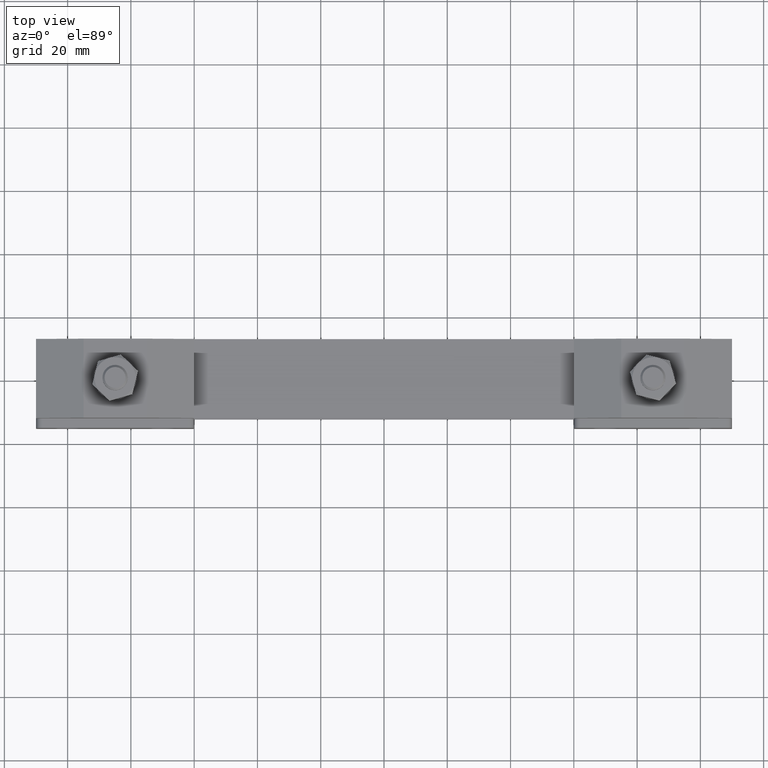
[diagram: clean part render]
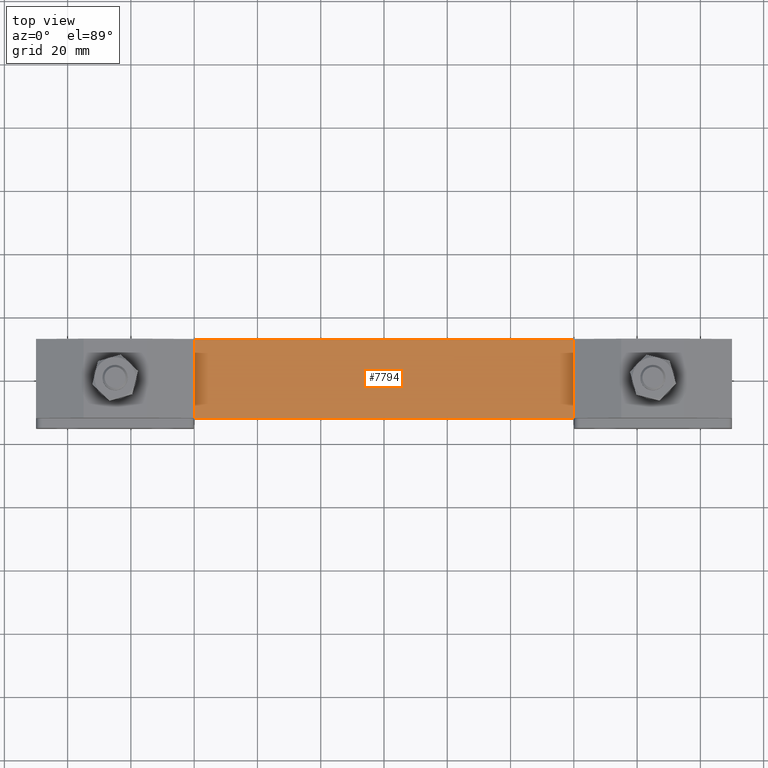
[diagram: same view with one face highlighted and labeled with its STEP entity id]
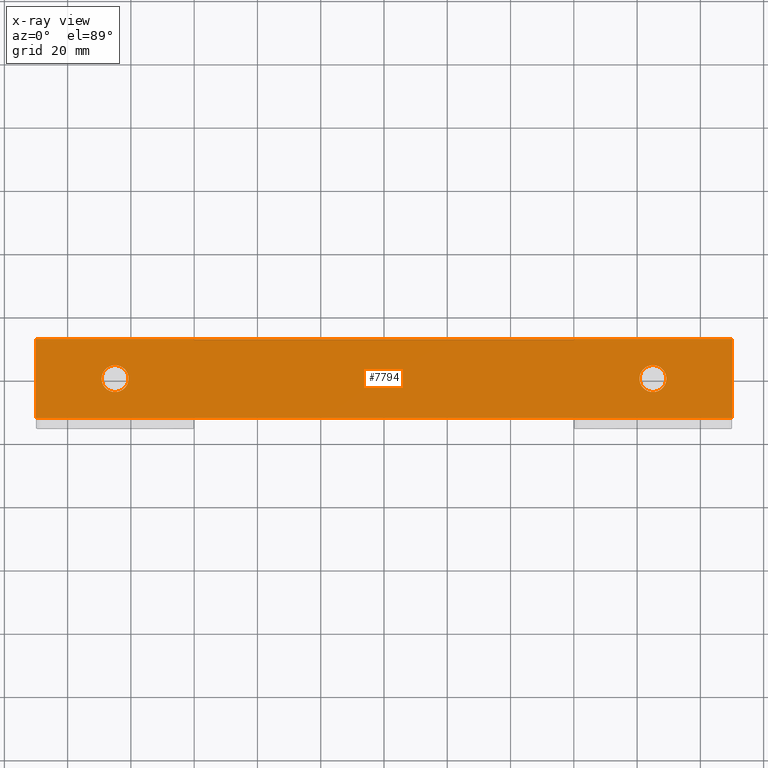
[diagram: x-ray of the same camera — body ghosted, the highlighted face saturated]
A machine part, top view. The second image highlights one B-rep face of the part: STEP entity #7794.
The next image is the same camera in x-ray: the body ghosted, the highlighted face saturated — about 0% of this face is hidden behind the body in this view.
In plain terms, the highlighted planar face has unit normal (0, 0, 1).
Its self-contained STEP definition (entity closure, byte-faithful):
#809 = EDGE_CURVE ( 'NONE', #18901, #17476, #10681, .T. ) ;
#878 = CARTESIAN_POINT ( 'NONE',  ( -89.25000000000001400, 3.252606517453555500E-018, 26.00000000000000000 ) ) ;
#1486 = CARTESIAN_POINT ( 'NONE',  ( -110.0000000000000000, -12.50000000000000000, 26.00000000000000000 ) ) ;
#1687 = CARTESIAN_POINT ( 'NONE',  ( 110.0000000000000000, 12.50000000000000000, 26.00000000000000000 ) ) ;
#1888 = EDGE_LOOP ( 'NONE', ( #20564, #6043 ) ) ;
#3034 = EDGE_CURVE ( 'NONE', #17476, #18901, #10311, .T. ) ;
#3055 = CARTESIAN_POINT ( 'NONE',  ( -110.0000000000000000, 12.50000000000000000, 26.00000000000000000 ) ) ;
#3314 = VECTOR ( 'NONE', #6472, 1000.000000000000000 ) ;
#3379 = VERTEX_POINT ( 'NONE', #20367 ) ;
#3551 = FACE_OUTER_BOUND ( 'NONE', #18664, .T. ) ;
#3590 = LINE ( 'NONE', #1687, #3314 ) ;
#3788 = VERTEX_POINT ( 'NONE', #19171 ) ;
#3937 = DIRECTION ( 'NONE',  ( -1.000000000000000000, 0.0000000000000000000, 0.0000000000000000000 ) ) ;
#4531 = ORIENTED_EDGE ( 'NONE', *, *, #7809, .T. ) ;
#5602 = DIRECTION ( 'NONE',  ( 0.0000000000000000000, 0.0000000000000000000, -1.000000000000000000 ) ) ;
#6043 = ORIENTED_EDGE ( 'NONE', *, *, #12510, .T. ) ;
#6472 = DIRECTION ( 'NONE',  ( 0.0000000000000000000, 1.000000000000000000, 0.0000000000000000000 ) ) ;
#6546 = ORIENTED_EDGE ( 'NONE', *, *, #809, .T. ) ;
#6737 = DIRECTION ( 'NONE',  ( 0.0000000000000000000, -1.000000000000000000, 0.0000000000000000000 ) ) ;
#6964 = CARTESIAN_POINT ( 'NONE',  ( 85.00000000000000000, 2.082156062149785100E-014, 26.00000000000000000 ) ) ;
#7201 = CARTESIAN_POINT ( 'NONE',  ( 89.25000000000001400, 2.134203551113547500E-014, 26.00000000000000000 ) ) ;
#7284 = LINE ( 'NONE', #17450, #10160 ) ;
#7763 = ORIENTED_EDGE ( 'NONE', *, *, #3034, .T. ) ;
#7794 = ADVANCED_FACE ( 'NONE', ( #20251, #17644, #3551 ), #11261, .T. ) ;
#7809 = EDGE_CURVE ( 'NONE', #18437, #3379, #15888, .T. ) ;
#8310 = DIRECTION ( 'NONE',  ( -1.000000000000000000, 5.519574696289839900E-017, 0.0000000000000000000 ) ) ;
#9209 = CARTESIAN_POINT ( 'NONE',  ( -80.75000000000000000, 5.237274961550783300E-016, 26.00000000000000000 ) ) ;
#10130 = DIRECTION ( 'NONE',  ( 1.000000000000000000, 0.0000000000000000000, 0.0000000000000000000 ) ) ;
#10160 = VECTOR ( 'NONE', #8310, 1000.000000000000000 ) ;
#10244 = VERTEX_POINT ( 'NONE', #878 ) ;
#10311 = CIRCLE ( 'NONE', #17796, 4.250000000000003600 ) ;
#10372 = ORIENTED_EDGE ( 'NONE', *, *, #20003, .T. ) ;
#10681 = CIRCLE ( 'NONE', #11463, 4.250000000000003600 ) ;
#10925 = DIRECTION ( 'NONE',  ( -1.000000000000000000, 0.0000000000000000000, 0.0000000000000000000 ) ) ;
#11184 = CARTESIAN_POINT ( 'NONE',  ( 80.75000000000000000, 2.082156062149785100E-014, 26.00000000000000000 ) ) ;
#11261 = PLANE ( 'NONE',  #15716 ) ;
#11421 = VECTOR ( 'NONE', #6737, 1000.000000000000000 ) ;
#11463 = AXIS2_PLACEMENT_3D ( 'NONE', #17201, #13700, #3937 ) ;
#11882 = DIRECTION ( 'NONE',  ( 0.0000000000000000000, 0.0000000000000000000, -1.000000000000000000 ) ) ;
#12494 = CARTESIAN_POINT ( 'NONE',  ( -85.00000000000000000, 3.252606517453555500E-018, 26.00000000000000000 ) ) ;
#12510 = EDGE_CURVE ( 'NONE', #15796, #10244, #17794, .T. ) ;
#12780 = ORIENTED_EDGE ( 'NONE', *, *, #19426, .T. ) ;
#13045 = DIRECTION ( 'NONE',  ( 1.000000000000000000, 0.0000000000000000000, 0.0000000000000000000 ) ) ;
#13329 = CIRCLE ( 'NONE', #18767, 4.250000000000003600 ) ;
#13700 = DIRECTION ( 'NONE',  ( 0.0000000000000000000, 0.0000000000000000000, -1.000000000000000000 ) ) ;
#14047 = EDGE_CURVE ( 'NONE', #3379, #15664, #3590, .T. ) ;
#14327 = VECTOR ( 'NONE', #13045, 1000.000000000000000 ) ;
#15616 = EDGE_CURVE ( 'NONE', #10244, #15796, #13329, .T. ) ;
#15664 = VERTEX_POINT ( 'NONE', #19792 ) ;
#15716 = AXIS2_PLACEMENT_3D ( 'NONE', #21199, #19916, #10130 ) ;
#15724 = ORIENTED_EDGE ( 'NONE', *, *, #14047, .T. ) ;
#15796 = VERTEX_POINT ( 'NONE', #9209 ) ;
#15888 = LINE ( 'NONE', #21063, #14327 ) ;
#16650 = AXIS2_PLACEMENT_3D ( 'NONE', #12494, #18936, #10925 ) ;
#16788 = DIRECTION ( 'NONE',  ( -1.000000000000000000, 0.0000000000000000000, 0.0000000000000000000 ) ) ;
#16997 = CARTESIAN_POINT ( 'NONE',  ( -85.00000000000000000, 3.252606517453555500E-018, 26.00000000000000000 ) ) ;
#17201 = CARTESIAN_POINT ( 'NONE',  ( 85.00000000000000000, 2.082156062149785100E-014, 26.00000000000000000 ) ) ;
#17450 = CARTESIAN_POINT ( 'NONE',  ( -110.0000000000000000, 12.50000000000000000, 26.00000000000000000 ) ) ;
#17476 = VERTEX_POINT ( 'NONE', #7201 ) ;
#17644 = FACE_BOUND ( 'NONE', #19405, .T. ) ;
#17794 = CIRCLE ( 'NONE', #16650, 4.250000000000003600 ) ;
#17796 = AXIS2_PLACEMENT_3D ( 'NONE', #6964, #11882, #16788 ) ;
#18437 = VERTEX_POINT ( 'NONE', #1486 ) ;
#18587 = DIRECTION ( 'NONE',  ( -1.000000000000000000, 0.0000000000000000000, 0.0000000000000000000 ) ) ;
#18664 = EDGE_LOOP ( 'NONE', ( #10372, #4531, #15724, #12780 ) ) ;
#18767 = AXIS2_PLACEMENT_3D ( 'NONE', #16997, #5602, #18587 ) ;
#18901 = VERTEX_POINT ( 'NONE', #11184 ) ;
#18936 = DIRECTION ( 'NONE',  ( 0.0000000000000000000, 0.0000000000000000000, -1.000000000000000000 ) ) ;
#19076 = LINE ( 'NONE', #3055, #11421 ) ;
#19171 = CARTESIAN_POINT ( 'NONE',  ( -110.0000000000000000, 12.50000000000000000, 26.00000000000000000 ) ) ;
#19405 = EDGE_LOOP ( 'NONE', ( #6546, #7763 ) ) ;
#19426 = EDGE_CURVE ( 'NONE', #15664, #3788, #7284, .T. ) ;
#19792 = CARTESIAN_POINT ( 'NONE',  ( 110.0000000000000000, 12.50000000000000000, 26.00000000000000000 ) ) ;
#19916 = DIRECTION ( 'NONE',  ( 0.0000000000000000000, 0.0000000000000000000, 1.000000000000000000 ) ) ;
#20003 = EDGE_CURVE ( 'NONE', #3788, #18437, #19076, .T. ) ;
#20251 = FACE_BOUND ( 'NONE', #1888, .T. ) ;
#20367 = CARTESIAN_POINT ( 'NONE',  ( 110.0000000000000000, -12.50000000000000000, 26.00000000000000000 ) ) ;
#20564 = ORIENTED_EDGE ( 'NONE', *, *, #15616, .T. ) ;
#21063 = CARTESIAN_POINT ( 'NONE',  ( -110.0000000000000000, -12.50000000000000000, 26.00000000000000000 ) ) ;
#21199 = CARTESIAN_POINT ( 'NONE',  ( -110.0000000000000000, -12.50000000000000000, 26.00000000000000000 ) ) ;